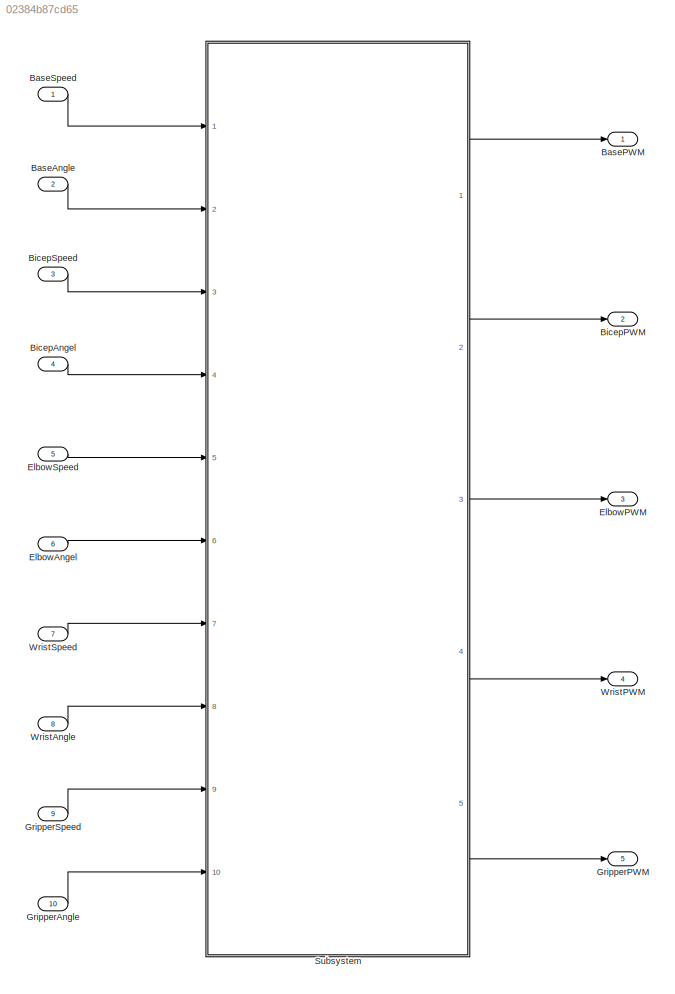
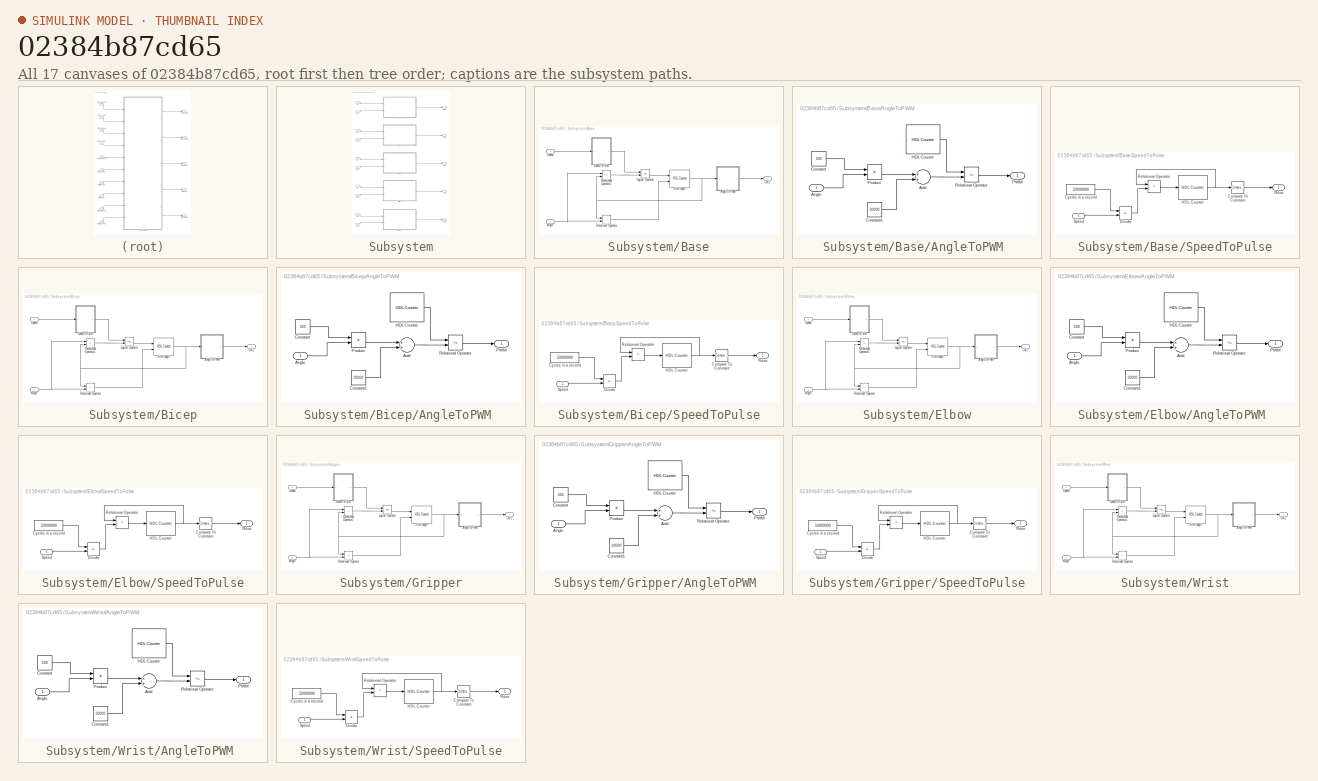
[diagram: thumbnail index - all 17 canvases of the model, root first then tree order]
MODEL slx_02384b87cd65
KIND model
CONFIG AbsTol = auto
CONFIG EnableMultiTasking = off
CONFIG FixedStep = auto
CONFIG MaxStep = auto
CONFIG MinStep = auto
CONFIG RelTol = 1e-3
CONFIG SampleTimeConstraint = Unconstrained
CONFIG Solver = VariableStepAuto
CONFIG SolverName = VariableStepAuto
CONFIG StartTime = 0.0
CONFIG StopTime = 10.0
BLOCK [Inport] BaseAngle
  IconDisplay = Port number
  OutDataTypeStr = uint8
  Port = 2
  SampleTime = 1
BLOCK [Outport] BasePWM 
  IconDisplay = Port number
  SampleTime = 1
BLOCK [Inport] BaseSpeed
  IconDisplay = Port number
  OutDataTypeStr = uint8
  SampleTime = 1
BLOCK [Inport] BicepAngel
  IconDisplay = Port number
  OutDataTypeStr = uint8
  Port = 4
  SampleTime = 1
BLOCK [Outport] BicepPWM 
  IconDisplay = Port number
  Port = 2
  SampleTime = 1
BLOCK [Inport] BicepSpeed
  IconDisplay = Port number
  OutDataTypeStr = uint8
  Port = 3
  SampleTime = 1
BLOCK [Inport] ElbowAngel
  IconDisplay = Port number
  OutDataTypeStr = uint8
  Port = 6
  SampleTime = 1
BLOCK [Outport] ElbowPWM 
  IconDisplay = Port number
  Port = 3
  SampleTime = 1
BLOCK [Inport] ElbowSpeed
  IconDisplay = Port number
  OutDataTypeStr = uint8
  Port = 5
  SampleTime = 1
BLOCK [Inport] GripperAngle
  IconDisplay = Port number
  OutDataTypeStr = uint8
  Port = 10
  SampleTime = 1
BLOCK [Outport] GripperPWM 
  IconDisplay = Port number
  Port = 5
  SampleTime = 1
BLOCK [Inport] GripperSpeed
  IconDisplay = Port number
  OutDataTypeStr = uint8
  Port = 9
  SampleTime = 1
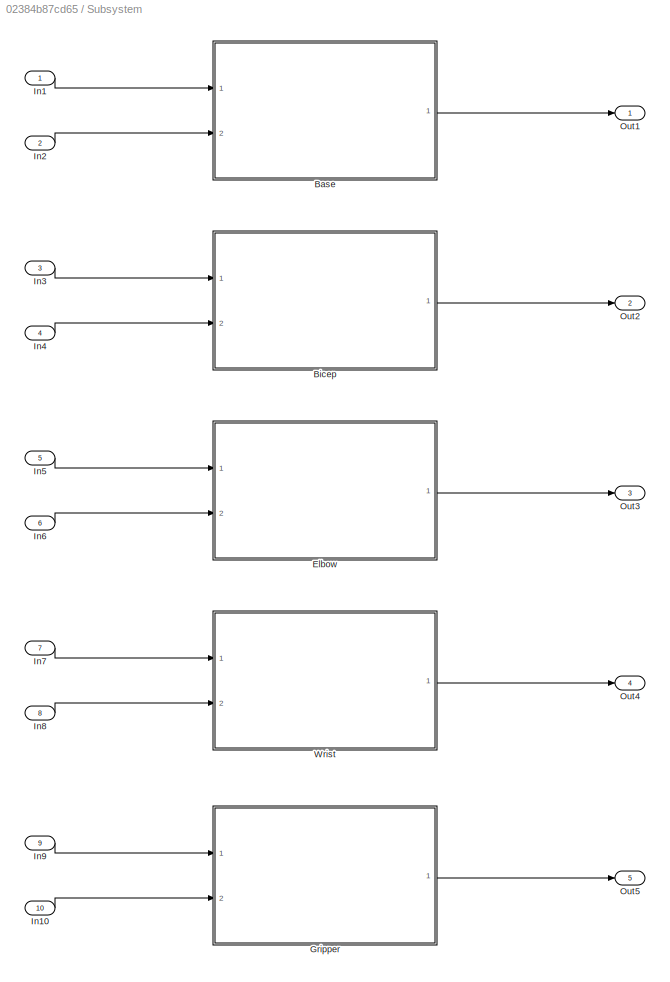
BLOCK [SubSystem] Subsystem
  Ports = [10, 5]
  RequestExecContextInheritance = off
  Variant = off
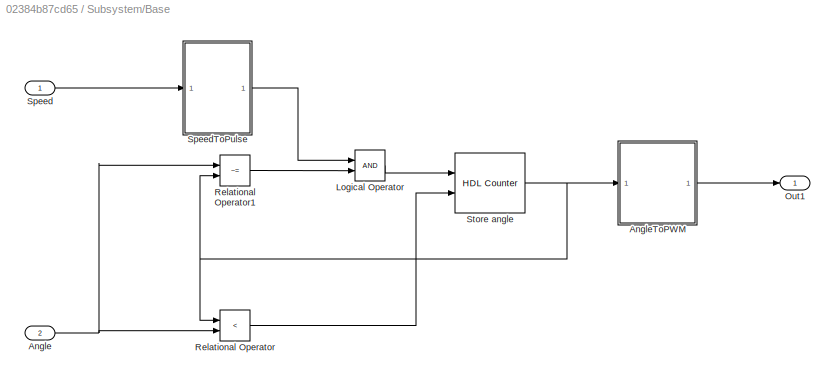
BLOCK [SubSystem] Subsystem/Base
  Ports = [2, 1]
  RequestExecContextInheritance = off
  Variant = off
BLOCK [Inport] Subsystem/Base/Angle
  IconDisplay = Port number
  Port = 2
  SampleTime = 1
BLOCK [SubSystem] Subsystem/Base/AngleToPWM 
  Ports = [1, 1]
  RequestExecContextInheritance = off
  Variant = off
BLOCK [Sum] Subsystem/Base/AngleToPWM /Add
  AccumDataTypeStr = uint32
  InputSameDT = off
  OutDataTypeStr = uint32
  Ports = [2, 1]
  SaturateOnIntegerOverflow = off
BLOCK [Inport] Subsystem/Base/AngleToPWM /Angle
  IconDisplay = Port number
  OutDataTypeStr = uint8
  SampleTime = 1
BLOCK [Constant] Subsystem/Base/AngleToPWM /Constant
  OutDataTypeStr = uint32
  SampleTime = 1
  Value = 500
BLOCK [Constant] Subsystem/Base/AngleToPWM /Constant1
  OutDataTypeStr = uint32
  SampleTime = 1
  Value = 30000
BLOCK [Reference] Subsystem/Base/AngleToPWM /HDL Counter  REF=hdlsllib/HDL Operations/HDL Counter
  Ports = [0, 1]
  SourceBlock = hdlsllib/HDL Operations/HDL Counter
  SourceProductBaseCode = HD
  SourceProductName = HDL Coder
  SourceType = HDL Counter
BLOCK [Outport] Subsystem/Base/AngleToPWM /PWM 
  IconDisplay = Port number
  SampleTime = 1
BLOCK [Product] Subsystem/Base/AngleToPWM /Product
  InputSameDT = off
  OutDataTypeStr = uint32
  Ports = [2, 1]
  RndMeth = Floor
  SaturateOnIntegerOverflow = off
BLOCK [RelationalOperator] Subsystem/Base/AngleToPWM /Relational Operator
  InputSameDT = off
  Operator = <=
  OutDataTypeStr = boolean
  Ports = [2, 1]
  RndMeth = Simplest
BLOCK [Logic] Subsystem/Base/Logical Operator
  AllPortsSameDT = off
  OutDataTypeStr = boolean
  Ports = [2, 1]
BLOCK [Outport] Subsystem/Base/Out1
  IconDisplay = Port number
  SampleTime = 1
BLOCK [RelationalOperator] Subsystem/Base/Relational Operator
  InputSameDT = off
  Operator = <
  OutDataTypeStr = boolean
  Ports = [2, 1]
  RndMeth = Simplest
BLOCK [RelationalOperator] Subsystem/Base/Relational Operator1
  InputSameDT = off
  Operator = ~=
  OutDataTypeStr = boolean
  Ports = [2, 1]
  RndMeth = Simplest
BLOCK [Inport] Subsystem/Base/Speed 
  IconDisplay = Port number
  SampleTime = 1
BLOCK [SubSystem] Subsystem/Base/SpeedToPulse
  Ports = [1, 1]
  RequestExecContextInheritance = off
  Variant = off
BLOCK [Reference] Subsystem/Base/SpeedToPulse/Compare To Constant  REF=simulink/Logic and Bit
Operations/Compare
To Constant
  Ports = [1, 1]
  SourceBlock = simulink/Logic and Bit\nOperations/Compare\nTo Constant
  SourceProductBaseCode = SL
  SourceProductName = Simulink
  SourceType = Compare To Constant
BLOCK [Constant] Subsystem/Base/SpeedToPulse/Cycles in a second
  OutDataTypeStr = uint32
  SampleTime = 1
  Value = 50000000
BLOCK [Product] Subsystem/Base/SpeedToPulse/Divide
  InputSameDT = off
  Inputs = */
  OutDataTypeStr = Inherit: Inherit via internal rule
  Ports = [2, 1]
BLOCK [Reference] Subsystem/Base/SpeedToPulse/HDL Counter  REF=hdlsllib/HDL Operations/HDL Counter
  Ports = [1, 1]
  SourceBlock = hdlsllib/HDL Operations/HDL Counter
  SourceProductBaseCode = HD
  SourceProductName = HDL Coder
  SourceType = HDL Counter
BLOCK [Outport] Subsystem/Base/SpeedToPulse/Pulse 
  IconDisplay = Port number
  SampleTime = 1
BLOCK [RelationalOperator] Subsystem/Base/SpeedToPulse/Relational Operator
  InputSameDT = off
  Operator = >
  OutDataTypeStr = boolean
  Ports = [2, 1]
  RndMeth = Simplest
BLOCK [Inport] Subsystem/Base/SpeedToPulse/Speed
  IconDisplay = Port number
  OutDataTypeStr = uint8
  SampleTime = 1
BLOCK [Reference] Subsystem/Base/Store angle  REF=hdlsllib/HDL Operations/HDL Counter
  Ports = [2, 1]
  SourceBlock = hdlsllib/HDL Operations/HDL Counter
  SourceProductBaseCode = HD
  SourceProductName = HDL Coder
  SourceType = HDL Counter
BLOCK [SubSystem] Subsystem/Bicep
  Ports = [2, 1]
  RequestExecContextInheritance = off
  Variant = off
BLOCK [Inport] Subsystem/Bicep/Angle
  IconDisplay = Port number
  Port = 2
  SampleTime = 1
BLOCK [SubSystem] Subsystem/Bicep/AngleToPWM 
  Ports = [1, 1]
  RequestExecContextInheritance = off
  Variant = off
BLOCK [Sum] Subsystem/Bicep/AngleToPWM /Add
  AccumDataTypeStr = uint32
  InputSameDT = off
  OutDataTypeStr = uint32
  Ports = [2, 1]
  SaturateOnIntegerOverflow = off
BLOCK [Inport] Subsystem/Bicep/AngleToPWM /Angle
  IconDisplay = Port number
  OutDataTypeStr = uint8
  SampleTime = 1
BLOCK [Constant] Subsystem/Bicep/AngleToPWM /Constant
  OutDataTypeStr = uint32
  SampleTime = 1
  Value = 500
BLOCK [Constant] Subsystem/Bicep/AngleToPWM /Constant1
  OutDataTypeStr = uint32
  SampleTime = 1
  Value = 30000
BLOCK [Reference] Subsystem/Bicep/AngleToPWM /HDL Counter  REF=hdlsllib/HDL Operations/HDL Counter
  Ports = [0, 1]
  SourceBlock = hdlsllib/HDL Operations/HDL Counter
  SourceProductBaseCode = HD
  SourceProductName = HDL Coder
  SourceType = HDL Counter
BLOCK [Outport] Subsystem/Bicep/AngleToPWM /PWM 
  IconDisplay = Port number
  SampleTime = 1
BLOCK [Product] Subsystem/Bicep/AngleToPWM /Product
  InputSameDT = off
  OutDataTypeStr = uint32
  Ports = [2, 1]
  RndMeth = Floor
  SaturateOnIntegerOverflow = off
BLOCK [RelationalOperator] Subsystem/Bicep/AngleToPWM /Relational Operator
  InputSameDT = off
  Operator = <=
  OutDataTypeStr = boolean
  Ports = [2, 1]
  RndMeth = Simplest
BLOCK [Logic] Subsystem/Bicep/Logical Operator
  AllPortsSameDT = off
  OutDataTypeStr = boolean
  Ports = [2, 1]
BLOCK [Outport] Subsystem/Bicep/Out1
  IconDisplay = Port number
  SampleTime = 1
BLOCK [RelationalOperator] Subsystem/Bicep/Relational Operator
  InputSameDT = off
  Operator = <
  OutDataTypeStr = boolean
  Ports = [2, 1]
  RndMeth = Simplest
BLOCK [RelationalOperator] Subsystem/Bicep/Relational Operator1
  InputSameDT = off
  Operator = ~=
  OutDataTypeStr = boolean
  Ports = [2, 1]
  RndMeth = Simplest
BLOCK [Inport] Subsystem/Bicep/Speed 
  IconDisplay = Port number
  SampleTime = 1
BLOCK [SubSystem] Subsystem/Bicep/SpeedToPulse
  Ports = [1, 1]
  RequestExecContextInheritance = off
  Variant = off
BLOCK [Reference] Subsystem/Bicep/SpeedToPulse/Compare To Constant  REF=simulink/Logic and Bit
Operations/Compare
To Constant
  Ports = [1, 1]
  SourceBlock = simulink/Logic and Bit\nOperations/Compare\nTo Constant
  SourceProductBaseCode = SL
  SourceProductName = Simulink
  SourceType = Compare To Constant
BLOCK [Constant] Subsystem/Bicep/SpeedToPulse/Cycles in a second
  OutDataTypeStr = uint32
  SampleTime = 1
  Value = 50000000
BLOCK [Product] Subsystem/Bicep/SpeedToPulse/Divide
  InputSameDT = off
  Inputs = */
  OutDataTypeStr = Inherit: Inherit via internal rule
  Ports = [2, 1]
BLOCK [Reference] Subsystem/Bicep/SpeedToPulse/HDL Counter  REF=hdlsllib/HDL Operations/HDL Counter
  Ports = [1, 1]
  SourceBlock = hdlsllib/HDL Operations/HDL Counter
  SourceProductBaseCode = HD
  SourceProductName = HDL Coder
  SourceType = HDL Counter
BLOCK [Outport] Subsystem/Bicep/SpeedToPulse/Pulse 
  IconDisplay = Port number
  SampleTime = 1
BLOCK [RelationalOperator] Subsystem/Bicep/SpeedToPulse/Relational Operator
  InputSameDT = off
  Operator = >
  OutDataTypeStr = boolean
  Ports = [2, 1]
  RndMeth = Simplest
BLOCK [Inport] Subsystem/Bicep/SpeedToPulse/Speed
  IconDisplay = Port number
  OutDataTypeStr = uint8
  SampleTime = 1
BLOCK [Reference] Subsystem/Bicep/Store angle  REF=hdlsllib/HDL Operations/HDL Counter
  Ports = [2, 1]
  SourceBlock = hdlsllib/HDL Operations/HDL Counter
  SourceProductBaseCode = HD
  SourceProductName = HDL Coder
  SourceType = HDL Counter
BLOCK [SubSystem] Subsystem/Elbow
  Ports = [2, 1]
  RequestExecContextInheritance = off
  Variant = off
BLOCK [Inport] Subsystem/Elbow/Angle
  IconDisplay = Port number
  Port = 2
  SampleTime = 1
BLOCK [SubSystem] Subsystem/Elbow/AngleToPWM 
  Ports = [1, 1]
  RequestExecContextInheritance = off
  Variant = off
BLOCK [Sum] Subsystem/Elbow/AngleToPWM /Add
  AccumDataTypeStr = uint32
  InputSameDT = off
  OutDataTypeStr = uint32
  Ports = [2, 1]
  SaturateOnIntegerOverflow = off
BLOCK [Inport] Subsystem/Elbow/AngleToPWM /Angle
  IconDisplay = Port number
  OutDataTypeStr = uint8
  SampleTime = 1
BLOCK [Constant] Subsystem/Elbow/AngleToPWM /Constant
  OutDataTypeStr = uint32
  SampleTime = 1
  Value = 500
BLOCK [Constant] Subsystem/Elbow/AngleToPWM /Constant1
  OutDataTypeStr = uint32
  SampleTime = 1
  Value = 30000
BLOCK [Reference] Subsystem/Elbow/AngleToPWM /HDL Counter  REF=hdlsllib/HDL Operations/HDL Counter
  Ports = [0, 1]
  SourceBlock = hdlsllib/HDL Operations/HDL Counter
  SourceProductBaseCode = HD
  SourceProductName = HDL Coder
  SourceType = HDL Counter
BLOCK [Outport] Subsystem/Elbow/AngleToPWM /PWM 
  IconDisplay = Port number
  SampleTime = 1
BLOCK [Product] Subsystem/Elbow/AngleToPWM /Product
  InputSameDT = off
  OutDataTypeStr = uint32
  Ports = [2, 1]
  RndMeth = Floor
  SaturateOnIntegerOverflow = off
BLOCK [RelationalOperator] Subsystem/Elbow/AngleToPWM /Relational Operator
  InputSameDT = off
  Operator = <=
  OutDataTypeStr = boolean
  Ports = [2, 1]
  RndMeth = Simplest
BLOCK [Logic] Subsystem/Elbow/Logical Operator
  AllPortsSameDT = off
  OutDataTypeStr = boolean
  Ports = [2, 1]
BLOCK [Outport] Subsystem/Elbow/Out1
  IconDisplay = Port number
  SampleTime = 1
BLOCK [RelationalOperator] Subsystem/Elbow/Relational Operator
  InputSameDT = off
  Operator = <
  OutDataTypeStr = boolean
  Ports = [2, 1]
  RndMeth = Simplest
BLOCK [RelationalOperator] Subsystem/Elbow/Relational Operator1
  InputSameDT = off
  Operator = ~=
  OutDataTypeStr = boolean
  Ports = [2, 1]
  RndMeth = Simplest
BLOCK [Inport] Subsystem/Elbow/Speed 
  IconDisplay = Port number
  SampleTime = 1
BLOCK [SubSystem] Subsystem/Elbow/SpeedToPulse
  Ports = [1, 1]
  RequestExecContextInheritance = off
  Variant = off
BLOCK [Reference] Subsystem/Elbow/SpeedToPulse/Compare To Constant  REF=simulink/Logic and Bit
Operations/Compare
To Constant
  Ports = [1, 1]
  SourceBlock = simulink/Logic and Bit\nOperations/Compare\nTo Constant
  SourceProductBaseCode = SL
  SourceProductName = Simulink
  SourceType = Compare To Constant
BLOCK [Constant] Subsystem/Elbow/SpeedToPulse/Cycles in a second
  OutDataTypeStr = uint32
  SampleTime = 1
  Value = 50000000
BLOCK [Product] Subsystem/Elbow/SpeedToPulse/Divide
  InputSameDT = off
  Inputs = */
  OutDataTypeStr = Inherit: Inherit via internal rule
  Ports = [2, 1]
BLOCK [Reference] Subsystem/Elbow/SpeedToPulse/HDL Counter  REF=hdlsllib/HDL Operations/HDL Counter
  Ports = [1, 1]
  SourceBlock = hdlsllib/HDL Operations/HDL Counter
  SourceProductBaseCode = HD
  SourceProductName = HDL Coder
  SourceType = HDL Counter
BLOCK [Outport] Subsystem/Elbow/SpeedToPulse/Pulse 
  IconDisplay = Port number
  SampleTime = 1
BLOCK [RelationalOperator] Subsystem/Elbow/SpeedToPulse/Relational Operator
  InputSameDT = off
  Operator = >
  OutDataTypeStr = boolean
  Ports = [2, 1]
  RndMeth = Simplest
BLOCK [Inport] Subsystem/Elbow/SpeedToPulse/Speed
  IconDisplay = Port number
  OutDataTypeStr = uint8
  SampleTime = 1
BLOCK [Reference] Subsystem/Elbow/Store angle  REF=hdlsllib/HDL Operations/HDL Counter
  Ports = [2, 1]
  SourceBlock = hdlsllib/HDL Operations/HDL Counter
  SourceProductBaseCode = HD
  SourceProductName = HDL Coder
  SourceType = HDL Counter
BLOCK [SubSystem] Subsystem/Gripper
  Ports = [2, 1]
  RequestExecContextInheritance = off
  Variant = off
BLOCK [Inport] Subsystem/Gripper/Angle
  IconDisplay = Port number
  Port = 2
  SampleTime = 1
BLOCK [SubSystem] Subsystem/Gripper/AngleToPWM 
  Ports = [1, 1]
  RequestExecContextInheritance = off
  Variant = off
BLOCK [Sum] Subsystem/Gripper/AngleToPWM /Add
  AccumDataTypeStr = uint32
  InputSameDT = off
  OutDataTypeStr = uint32
  Ports = [2, 1]
  SaturateOnIntegerOverflow = off
BLOCK [Inport] Subsystem/Gripper/AngleToPWM /Angle
  IconDisplay = Port number
  OutDataTypeStr = uint8
  SampleTime = 1
BLOCK [Constant] Subsystem/Gripper/AngleToPWM /Constant
  OutDataTypeStr = uint32
  SampleTime = 1
  Value = 500
BLOCK [Constant] Subsystem/Gripper/AngleToPWM /Constant1
  OutDataTypeStr = uint32
  SampleTime = 1
  Value = 30000
BLOCK [Reference] Subsystem/Gripper/AngleToPWM /HDL Counter  REF=hdlsllib/HDL Operations/HDL Counter
  Ports = [0, 1]
  SourceBlock = hdlsllib/HDL Operations/HDL Counter
  SourceProductBaseCode = HD
  SourceProductName = HDL Coder
  SourceType = HDL Counter
BLOCK [Outport] Subsystem/Gripper/AngleToPWM /PWM 
  IconDisplay = Port number
  SampleTime = 1
BLOCK [Product] Subsystem/Gripper/AngleToPWM /Product
  InputSameDT = off
  OutDataTypeStr = uint32
  Ports = [2, 1]
  RndMeth = Floor
  SaturateOnIntegerOverflow = off
BLOCK [RelationalOperator] Subsystem/Gripper/AngleToPWM /Relational Operator
  InputSameDT = off
  Operator = <=
  OutDataTypeStr = boolean
  Ports = [2, 1]
  RndMeth = Simplest
BLOCK [Logic] Subsystem/Gripper/Logical Operator
  AllPortsSameDT = off
  OutDataTypeStr = boolean
  Ports = [2, 1]
BLOCK [Outport] Subsystem/Gripper/Out1
  IconDisplay = Port number
  SampleTime = 1
BLOCK [RelationalOperator] Subsystem/Gripper/Relational Operator
  InputSameDT = off
  Operator = <
  OutDataTypeStr = boolean
  Ports = [2, 1]
  RndMeth = Simplest
BLOCK [RelationalOperator] Subsystem/Gripper/Relational Operator1
  InputSameDT = off
  Operator = ~=
  OutDataTypeStr = boolean
  Ports = [2, 1]
  RndMeth = Simplest
BLOCK [Inport] Subsystem/Gripper/Speed 
  IconDisplay = Port number
  SampleTime = 1
BLOCK [SubSystem] Subsystem/Gripper/SpeedToPulse
  Ports = [1, 1]
  RequestExecContextInheritance = off
  Variant = off
BLOCK [Reference] Subsystem/Gripper/SpeedToPulse/Compare To Constant  REF=simulink/Logic and Bit
Operations/Compare
To Constant
  Ports = [1, 1]
  SourceBlock = simulink/Logic and Bit\nOperations/Compare\nTo Constant
  SourceProductBaseCode = SL
  SourceProductName = Simulink
  SourceType = Compare To Constant
BLOCK [Constant] Subsystem/Gripper/SpeedToPulse/Cycles in a second
  OutDataTypeStr = uint32
  SampleTime = 1
  Value = 50000000
BLOCK [Product] Subsystem/Gripper/SpeedToPulse/Divide
  InputSameDT = off
  Inputs = */
  OutDataTypeStr = Inherit: Inherit via internal rule
  Ports = [2, 1]
BLOCK [Reference] Subsystem/Gripper/SpeedToPulse/HDL Counter  REF=hdlsllib/HDL Operations/HDL Counter
  Ports = [1, 1]
  SourceBlock = hdlsllib/HDL Operations/HDL Counter
  SourceProductBaseCode = HD
  SourceProductName = HDL Coder
  SourceType = HDL Counter
BLOCK [Outport] Subsystem/Gripper/SpeedToPulse/Pulse 
  IconDisplay = Port number
  SampleTime = 1
BLOCK [RelationalOperator] Subsystem/Gripper/SpeedToPulse/Relational Operator
  InputSameDT = off
  Operator = >
  OutDataTypeStr = boolean
  Ports = [2, 1]
  RndMeth = Simplest
BLOCK [Inport] Subsystem/Gripper/SpeedToPulse/Speed
  IconDisplay = Port number
  OutDataTypeStr = uint8
  SampleTime = 1
BLOCK [Reference] Subsystem/Gripper/Store angle  REF=hdlsllib/HDL Operations/HDL Counter
  Ports = [2, 1]
  SourceBlock = hdlsllib/HDL Operations/HDL Counter
  SourceProductBaseCode = HD
  SourceProductName = HDL Coder
  SourceType = HDL Counter
BLOCK [Inport] Subsystem/In1
  IconDisplay = Port number
BLOCK [Inport] Subsystem/In10
  IconDisplay = Port number
  Port = 10
BLOCK [Inport] Subsystem/In2
  IconDisplay = Port number
  Port = 2
BLOCK [Inport] Subsystem/In3
  IconDisplay = Port number
  Port = 3
BLOCK [Inport] Subsystem/In4
  IconDisplay = Port number
  Port = 4
BLOCK [Inport] Subsystem/In5
  IconDisplay = Port number
  Port = 5
BLOCK [Inport] Subsystem/In6
  IconDisplay = Port number
  Port = 6
BLOCK [Inport] Subsystem/In7
  IconDisplay = Port number
  Port = 7
BLOCK [Inport] Subsystem/In8
  IconDisplay = Port number
  Port = 8
BLOCK [Inport] Subsystem/In9
  IconDisplay = Port number
  Port = 9
BLOCK [Outport] Subsystem/Out1
  IconDisplay = Port number
BLOCK [Outport] Subsystem/Out2
  IconDisplay = Port number
  Port = 2
BLOCK [Outport] Subsystem/Out3
  IconDisplay = Port number
  Port = 3
BLOCK [Outport] Subsystem/Out4
  IconDisplay = Port number
  Port = 4
BLOCK [Outport] Subsystem/Out5
  IconDisplay = Port number
  Port = 5
BLOCK [SubSystem] Subsystem/Wrist
  Ports = [2, 1]
  RequestExecContextInheritance = off
  Variant = off
BLOCK [Inport] Subsystem/Wrist/Angle
  IconDisplay = Port number
  Port = 2
  SampleTime = 1
BLOCK [SubSystem] Subsystem/Wrist/AngleToPWM 
  Ports = [1, 1]
  RequestExecContextInheritance = off
  Variant = off
BLOCK [Sum] Subsystem/Wrist/AngleToPWM /Add
  AccumDataTypeStr = uint32
  InputSameDT = off
  OutDataTypeStr = uint32
  Ports = [2, 1]
  SaturateOnIntegerOverflow = off
BLOCK [Inport] Subsystem/Wrist/AngleToPWM /Angle
  IconDisplay = Port number
  OutDataTypeStr = uint8
  SampleTime = 1
BLOCK [Constant] Subsystem/Wrist/AngleToPWM /Constant
  OutDataTypeStr = uint32
  SampleTime = 1
  Value = 500
BLOCK [Constant] Subsystem/Wrist/AngleToPWM /Constant1
  OutDataTypeStr = uint32
  SampleTime = 1
  Value = 30000
BLOCK [Reference] Subsystem/Wrist/AngleToPWM /HDL Counter  REF=hdlsllib/HDL Operations/HDL Counter
  Ports = [0, 1]
  SourceBlock = hdlsllib/HDL Operations/HDL Counter
  SourceProductBaseCode = HD
  SourceProductName = HDL Coder
  SourceType = HDL Counter
BLOCK [Outport] Subsystem/Wrist/AngleToPWM /PWM 
  IconDisplay = Port number
  SampleTime = 1
BLOCK [Product] Subsystem/Wrist/AngleToPWM /Product
  InputSameDT = off
  OutDataTypeStr = uint32
  Ports = [2, 1]
  RndMeth = Floor
  SaturateOnIntegerOverflow = off
BLOCK [RelationalOperator] Subsystem/Wrist/AngleToPWM /Relational Operator
  InputSameDT = off
  Operator = <=
  OutDataTypeStr = boolean
  Ports = [2, 1]
  RndMeth = Simplest
BLOCK [Logic] Subsystem/Wrist/Logical Operator
  AllPortsSameDT = off
  OutDataTypeStr = boolean
  Ports = [2, 1]
BLOCK [Outport] Subsystem/Wrist/Out1
  IconDisplay = Port number
  SampleTime = 1
BLOCK [RelationalOperator] Subsystem/Wrist/Relational Operator
  InputSameDT = off
  Operator = <
  OutDataTypeStr = boolean
  Ports = [2, 1]
  RndMeth = Simplest
BLOCK [RelationalOperator] Subsystem/Wrist/Relational Operator1
  InputSameDT = off
  Operator = ~=
  OutDataTypeStr = boolean
  Ports = [2, 1]
  RndMeth = Simplest
BLOCK [Inport] Subsystem/Wrist/Speed 
  IconDisplay = Port number
  SampleTime = 1
BLOCK [SubSystem] Subsystem/Wrist/SpeedToPulse
  Ports = [1, 1]
  RequestExecContextInheritance = off
  Variant = off
BLOCK [Reference] Subsystem/Wrist/SpeedToPulse/Compare To Constant  REF=simulink/Logic and Bit
Operations/Compare
To Constant
  Ports = [1, 1]
  SourceBlock = simulink/Logic and Bit\nOperations/Compare\nTo Constant
  SourceProductBaseCode = SL
  SourceProductName = Simulink
  SourceType = Compare To Constant
BLOCK [Constant] Subsystem/Wrist/SpeedToPulse/Cycles in a second
  OutDataTypeStr = uint32
  SampleTime = 1
  Value = 50000000
BLOCK [Product] Subsystem/Wrist/SpeedToPulse/Divide
  InputSameDT = off
  Inputs = */
  OutDataTypeStr = Inherit: Inherit via internal rule
  Ports = [2, 1]
BLOCK [Reference] Subsystem/Wrist/SpeedToPulse/HDL Counter  REF=hdlsllib/HDL Operations/HDL Counter
  Ports = [1, 1]
  SourceBlock = hdlsllib/HDL Operations/HDL Counter
  SourceProductBaseCode = HD
  SourceProductName = HDL Coder
  SourceType = HDL Counter
BLOCK [Outport] Subsystem/Wrist/SpeedToPulse/Pulse 
  IconDisplay = Port number
  SampleTime = 1
BLOCK [RelationalOperator] Subsystem/Wrist/SpeedToPulse/Relational Operator
  InputSameDT = off
  Operator = >
  OutDataTypeStr = boolean
  Ports = [2, 1]
  RndMeth = Simplest
BLOCK [Inport] Subsystem/Wrist/SpeedToPulse/Speed
  IconDisplay = Port number
  OutDataTypeStr = uint8
  SampleTime = 1
BLOCK [Reference] Subsystem/Wrist/Store angle  REF=hdlsllib/HDL Operations/HDL Counter
  Ports = [2, 1]
  SourceBlock = hdlsllib/HDL Operations/HDL Counter
  SourceProductBaseCode = HD
  SourceProductName = HDL Coder
  SourceType = HDL Counter
BLOCK [Inport] WristAngle
  IconDisplay = Port number
  OutDataTypeStr = uint8
  Port = 8
  SampleTime = 1
BLOCK [Outport] WristPWM 
  IconDisplay = Port number
  Port = 4
  SampleTime = 1
BLOCK [Inport] WristSpeed
  IconDisplay = Port number
  OutDataTypeStr = uint8
  Port = 7
  SampleTime = 1
LINE BaseAngle:1 -> Subsystem:2
LINE BaseSpeed:1 -> Subsystem:1
LINE BicepAngel:1 -> Subsystem:4
LINE BicepSpeed:1 -> Subsystem:3
LINE ElbowAngel:1 -> Subsystem:6
LINE ElbowSpeed:1 -> Subsystem:5
LINE GripperAngle:1 -> Subsystem:10
LINE GripperSpeed:1 -> Subsystem:9
NET Subsystem/Base/Angle:1 -> Subsystem/Base/Relational Operator1:1, Subsystem/Base/Relational Operator:2
LINE Subsystem/Base/AngleToPWM /Add:1 -> Subsystem/Base/AngleToPWM /Relational Operator:2
LINE Subsystem/Base/AngleToPWM /Angle:1 -> Subsystem/Base/AngleToPWM /Product:2
LINE Subsystem/Base/AngleToPWM /Constant1:1 -> Subsystem/Base/AngleToPWM /Add:2
LINE Subsystem/Base/AngleToPWM /Constant:1 -> Subsystem/Base/AngleToPWM /Product:1
LINE Subsystem/Base/AngleToPWM /HDL Counter:1 -> Subsystem/Base/AngleToPWM /Relational Operator:1
LINE Subsystem/Base/AngleToPWM /Product:1 -> Subsystem/Base/AngleToPWM /Add:1
LINE Subsystem/Base/AngleToPWM /Relational Operator:1 -> Subsystem/Base/AngleToPWM /PWM :1
LINE Subsystem/Base/AngleToPWM :1 -> Subsystem/Base/Out1:1
LINE Subsystem/Base/Logical Operator:1 -> Subsystem/Base/Store angle:1
LINE Subsystem/Base/Relational Operator1:1 -> Subsystem/Base/Logical Operator:2
LINE Subsystem/Base/Relational Operator:1 -> Subsystem/Base/Store angle:2
LINE Subsystem/Base/Speed :1 -> Subsystem/Base/SpeedToPulse:1
LINE Subsystem/Base/SpeedToPulse/Compare To Constant:1 -> Subsystem/Base/SpeedToPulse/Pulse :1
LINE Subsystem/Base/SpeedToPulse/Cycles in a second:1 -> Subsystem/Base/SpeedToPulse/Divide:1
LINE Subsystem/Base/SpeedToPulse/Divide:1 -> Subsystem/Base/SpeedToPulse/Relational Operator:2
NET Subsystem/Base/SpeedToPulse/HDL Counter:1 -> Subsystem/Base/SpeedToPulse/Compare To Constant:1, Subsystem/Base/SpeedToPulse/Relational Operator:1
LINE Subsystem/Base/SpeedToPulse/Relational Operator:1 -> Subsystem/Base/SpeedToPulse/HDL Counter:1
LINE Subsystem/Base/SpeedToPulse/Speed:1 -> Subsystem/Base/SpeedToPulse/Divide:2
LINE Subsystem/Base/SpeedToPulse:1 -> Subsystem/Base/Logical Operator:1
NET Subsystem/Base/Store angle:1 -> Subsystem/Base/AngleToPWM :1, Subsystem/Base/Relational Operator1:2, Subsystem/Base/Relational Operator:1
LINE Subsystem/Base:1 -> Subsystem/Out1:1
NET Subsystem/Bicep/Angle:1 -> Subsystem/Bicep/Relational Operator1:1, Subsystem/Bicep/Relational Operator:2
LINE Subsystem/Bicep/AngleToPWM /Add:1 -> Subsystem/Bicep/AngleToPWM /Relational Operator:2
LINE Subsystem/Bicep/AngleToPWM /Angle:1 -> Subsystem/Bicep/AngleToPWM /Product:2
LINE Subsystem/Bicep/AngleToPWM /Constant1:1 -> Subsystem/Bicep/AngleToPWM /Add:2
LINE Subsystem/Bicep/AngleToPWM /Constant:1 -> Subsystem/Bicep/AngleToPWM /Product:1
LINE Subsystem/Bicep/AngleToPWM /HDL Counter:1 -> Subsystem/Bicep/AngleToPWM /Relational Operator:1
LINE Subsystem/Bicep/AngleToPWM /Product:1 -> Subsystem/Bicep/AngleToPWM /Add:1
LINE Subsystem/Bicep/AngleToPWM /Relational Operator:1 -> Subsystem/Bicep/AngleToPWM /PWM :1
LINE Subsystem/Bicep/AngleToPWM :1 -> Subsystem/Bicep/Out1:1
LINE Subsystem/Bicep/Logical Operator:1 -> Subsystem/Bicep/Store angle:1
LINE Subsystem/Bicep/Relational Operator1:1 -> Subsystem/Bicep/Logical Operator:2
LINE Subsystem/Bicep/Relational Operator:1 -> Subsystem/Bicep/Store angle:2
LINE Subsystem/Bicep/Speed :1 -> Subsystem/Bicep/SpeedToPulse:1
LINE Subsystem/Bicep/SpeedToPulse/Compare To Constant:1 -> Subsystem/Bicep/SpeedToPulse/Pulse :1
LINE Subsystem/Bicep/SpeedToPulse/Cycles in a second:1 -> Subsystem/Bicep/SpeedToPulse/Divide:1
LINE Subsystem/Bicep/SpeedToPulse/Divide:1 -> Subsystem/Bicep/SpeedToPulse/Relational Operator:2
NET Subsystem/Bicep/SpeedToPulse/HDL Counter:1 -> Subsystem/Bicep/SpeedToPulse/Compare To Constant:1, Subsystem/Bicep/SpeedToPulse/Relational Operator:1
LINE Subsystem/Bicep/SpeedToPulse/Relational Operator:1 -> Subsystem/Bicep/SpeedToPulse/HDL Counter:1
LINE Subsystem/Bicep/SpeedToPulse/Speed:1 -> Subsystem/Bicep/SpeedToPulse/Divide:2
LINE Subsystem/Bicep/SpeedToPulse:1 -> Subsystem/Bicep/Logical Operator:1
NET Subsystem/Bicep/Store angle:1 -> Subsystem/Bicep/AngleToPWM :1, Subsystem/Bicep/Relational Operator1:2, Subsystem/Bicep/Relational Operator:1
LINE Subsystem/Bicep:1 -> Subsystem/Out2:1
NET Subsystem/Elbow/Angle:1 -> Subsystem/Elbow/Relational Operator1:1, Subsystem/Elbow/Relational Operator:2
LINE Subsystem/Elbow/AngleToPWM /Add:1 -> Subsystem/Elbow/AngleToPWM /Relational Operator:2
LINE Subsystem/Elbow/AngleToPWM /Angle:1 -> Subsystem/Elbow/AngleToPWM /Product:2
LINE Subsystem/Elbow/AngleToPWM /Constant1:1 -> Subsystem/Elbow/AngleToPWM /Add:2
LINE Subsystem/Elbow/AngleToPWM /Constant:1 -> Subsystem/Elbow/AngleToPWM /Product:1
LINE Subsystem/Elbow/AngleToPWM /HDL Counter:1 -> Subsystem/Elbow/AngleToPWM /Relational Operator:1
LINE Subsystem/Elbow/AngleToPWM /Product:1 -> Subsystem/Elbow/AngleToPWM /Add:1
LINE Subsystem/Elbow/AngleToPWM /Relational Operator:1 -> Subsystem/Elbow/AngleToPWM /PWM :1
LINE Subsystem/Elbow/AngleToPWM :1 -> Subsystem/Elbow/Out1:1
LINE Subsystem/Elbow/Logical Operator:1 -> Subsystem/Elbow/Store angle:1
LINE Subsystem/Elbow/Relational Operator1:1 -> Subsystem/Elbow/Logical Operator:2
LINE Subsystem/Elbow/Relational Operator:1 -> Subsystem/Elbow/Store angle:2
LINE Subsystem/Elbow/Speed :1 -> Subsystem/Elbow/SpeedToPulse:1
LINE Subsystem/Elbow/SpeedToPulse/Compare To Constant:1 -> Subsystem/Elbow/SpeedToPulse/Pulse :1
LINE Subsystem/Elbow/SpeedToPulse/Cycles in a second:1 -> Subsystem/Elbow/SpeedToPulse/Divide:1
LINE Subsystem/Elbow/SpeedToPulse/Divide:1 -> Subsystem/Elbow/SpeedToPulse/Relational Operator:2
NET Subsystem/Elbow/SpeedToPulse/HDL Counter:1 -> Subsystem/Elbow/SpeedToPulse/Compare To Constant:1, Subsystem/Elbow/SpeedToPulse/Relational Operator:1
LINE Subsystem/Elbow/SpeedToPulse/Relational Operator:1 -> Subsystem/Elbow/SpeedToPulse/HDL Counter:1
LINE Subsystem/Elbow/SpeedToPulse/Speed:1 -> Subsystem/Elbow/SpeedToPulse/Divide:2
LINE Subsystem/Elbow/SpeedToPulse:1 -> Subsystem/Elbow/Logical Operator:1
NET Subsystem/Elbow/Store angle:1 -> Subsystem/Elbow/AngleToPWM :1, Subsystem/Elbow/Relational Operator1:2, Subsystem/Elbow/Relational Operator:1
LINE Subsystem/Elbow:1 -> Subsystem/Out3:1
NET Subsystem/Gripper/Angle:1 -> Subsystem/Gripper/Relational Operator1:1, Subsystem/Gripper/Relational Operator:2
LINE Subsystem/Gripper/AngleToPWM /Add:1 -> Subsystem/Gripper/AngleToPWM /Relational Operator:2
LINE Subsystem/Gripper/AngleToPWM /Angle:1 -> Subsystem/Gripper/AngleToPWM /Product:2
LINE Subsystem/Gripper/AngleToPWM /Constant1:1 -> Subsystem/Gripper/AngleToPWM /Add:2
LINE Subsystem/Gripper/AngleToPWM /Constant:1 -> Subsystem/Gripper/AngleToPWM /Product:1
LINE Subsystem/Gripper/AngleToPWM /HDL Counter:1 -> Subsystem/Gripper/AngleToPWM /Relational Operator:1
LINE Subsystem/Gripper/AngleToPWM /Product:1 -> Subsystem/Gripper/AngleToPWM /Add:1
LINE Subsystem/Gripper/AngleToPWM /Relational Operator:1 -> Subsystem/Gripper/AngleToPWM /PWM :1
LINE Subsystem/Gripper/AngleToPWM :1 -> Subsystem/Gripper/Out1:1
LINE Subsystem/Gripper/Logical Operator:1 -> Subsystem/Gripper/Store angle:1
LINE Subsystem/Gripper/Relational Operator1:1 -> Subsystem/Gripper/Logical Operator:2
LINE Subsystem/Gripper/Relational Operator:1 -> Subsystem/Gripper/Store angle:2
LINE Subsystem/Gripper/Speed :1 -> Subsystem/Gripper/SpeedToPulse:1
LINE Subsystem/Gripper/SpeedToPulse/Compare To Constant:1 -> Subsystem/Gripper/SpeedToPulse/Pulse :1
LINE Subsystem/Gripper/SpeedToPulse/Cycles in a second:1 -> Subsystem/Gripper/SpeedToPulse/Divide:1
LINE Subsystem/Gripper/SpeedToPulse/Divide:1 -> Subsystem/Gripper/SpeedToPulse/Relational Operator:2
NET Subsystem/Gripper/SpeedToPulse/HDL Counter:1 -> Subsystem/Gripper/SpeedToPulse/Compare To Constant:1, Subsystem/Gripper/SpeedToPulse/Relational Operator:1
LINE Subsystem/Gripper/SpeedToPulse/Relational Operator:1 -> Subsystem/Gripper/SpeedToPulse/HDL Counter:1
LINE Subsystem/Gripper/SpeedToPulse/Speed:1 -> Subsystem/Gripper/SpeedToPulse/Divide:2
LINE Subsystem/Gripper/SpeedToPulse:1 -> Subsystem/Gripper/Logical Operator:1
NET Subsystem/Gripper/Store angle:1 -> Subsystem/Gripper/AngleToPWM :1, Subsystem/Gripper/Relational Operator1:2, Subsystem/Gripper/Relational Operator:1
LINE Subsystem/Gripper:1 -> Subsystem/Out5:1
LINE Subsystem/In10:1 -> Subsystem/Gripper:2
LINE Subsystem/In1:1 -> Subsystem/Base:1
LINE Subsystem/In2:1 -> Subsystem/Base:2
LINE Subsystem/In3:1 -> Subsystem/Bicep:1
LINE Subsystem/In4:1 -> Subsystem/Bicep:2
LINE Subsystem/In5:1 -> Subsystem/Elbow:1
LINE Subsystem/In6:1 -> Subsystem/Elbow:2
LINE Subsystem/In7:1 -> Subsystem/Wrist:1
LINE Subsystem/In8:1 -> Subsystem/Wrist:2
LINE Subsystem/In9:1 -> Subsystem/Gripper:1
NET Subsystem/Wrist/Angle:1 -> Subsystem/Wrist/Relational Operator1:1, Subsystem/Wrist/Relational Operator:2
LINE Subsystem/Wrist/AngleToPWM /Add:1 -> Subsystem/Wrist/AngleToPWM /Relational Operator:2
LINE Subsystem/Wrist/AngleToPWM /Angle:1 -> Subsystem/Wrist/AngleToPWM /Product:2
LINE Subsystem/Wrist/AngleToPWM /Constant1:1 -> Subsystem/Wrist/AngleToPWM /Add:2
LINE Subsystem/Wrist/AngleToPWM /Constant:1 -> Subsystem/Wrist/AngleToPWM /Product:1
LINE Subsystem/Wrist/AngleToPWM /HDL Counter:1 -> Subsystem/Wrist/AngleToPWM /Relational Operator:1
LINE Subsystem/Wrist/AngleToPWM /Product:1 -> Subsystem/Wrist/AngleToPWM /Add:1
LINE Subsystem/Wrist/AngleToPWM /Relational Operator:1 -> Subsystem/Wrist/AngleToPWM /PWM :1
LINE Subsystem/Wrist/AngleToPWM :1 -> Subsystem/Wrist/Out1:1
LINE Subsystem/Wrist/Logical Operator:1 -> Subsystem/Wrist/Store angle:1
LINE Subsystem/Wrist/Relational Operator1:1 -> Subsystem/Wrist/Logical Operator:2
LINE Subsystem/Wrist/Relational Operator:1 -> Subsystem/Wrist/Store angle:2
LINE Subsystem/Wrist/Speed :1 -> Subsystem/Wrist/SpeedToPulse:1
LINE Subsystem/Wrist/SpeedToPulse/Compare To Constant:1 -> Subsystem/Wrist/SpeedToPulse/Pulse :1
LINE Subsystem/Wrist/SpeedToPulse/Cycles in a second:1 -> Subsystem/Wrist/SpeedToPulse/Divide:1
LINE Subsystem/Wrist/SpeedToPulse/Divide:1 -> Subsystem/Wrist/SpeedToPulse/Relational Operator:2
NET Subsystem/Wrist/SpeedToPulse/HDL Counter:1 -> Subsystem/Wrist/SpeedToPulse/Compare To Constant:1, Subsystem/Wrist/SpeedToPulse/Relational Operator:1
LINE Subsystem/Wrist/SpeedToPulse/Relational Operator:1 -> Subsystem/Wrist/SpeedToPulse/HDL Counter:1
LINE Subsystem/Wrist/SpeedToPulse/Speed:1 -> Subsystem/Wrist/SpeedToPulse/Divide:2
LINE Subsystem/Wrist/SpeedToPulse:1 -> Subsystem/Wrist/Logical Operator:1
NET Subsystem/Wrist/Store angle:1 -> Subsystem/Wrist/AngleToPWM :1, Subsystem/Wrist/Relational Operator1:2, Subsystem/Wrist/Relational Operator:1
LINE Subsystem/Wrist:1 -> Subsystem/Out4:1
LINE Subsystem:1 -> BasePWM :1
LINE Subsystem:2 -> BicepPWM :1
LINE Subsystem:3 -> ElbowPWM :1
LINE Subsystem:4 -> WristPWM :1
LINE Subsystem:5 -> GripperPWM :1
LINE WristAngle:1 -> Subsystem:8
LINE WristSpeed:1 -> Subsystem:7
note: NET lines group one-source signal fan-out (src -> all destinations, sorted); 1:1 wires keep LINE
